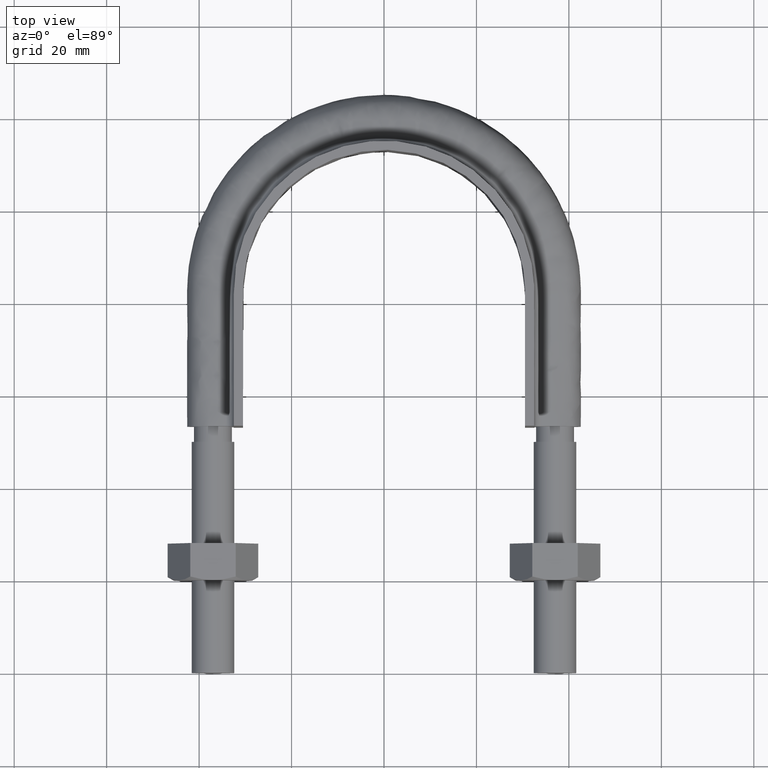
[diagram: clean part render]
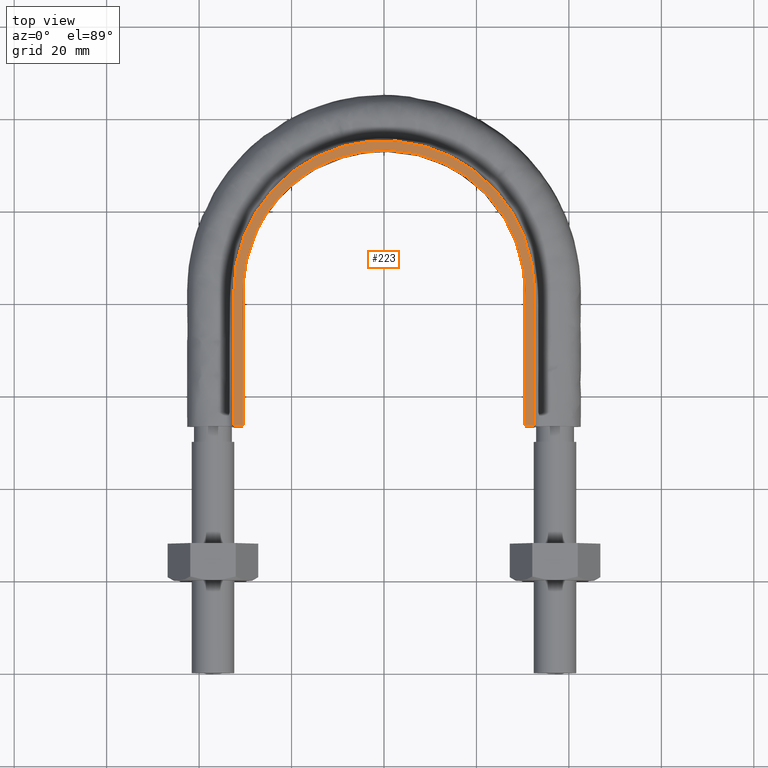
[diagram: same view with one face highlighted and labeled with its STEP entity id]
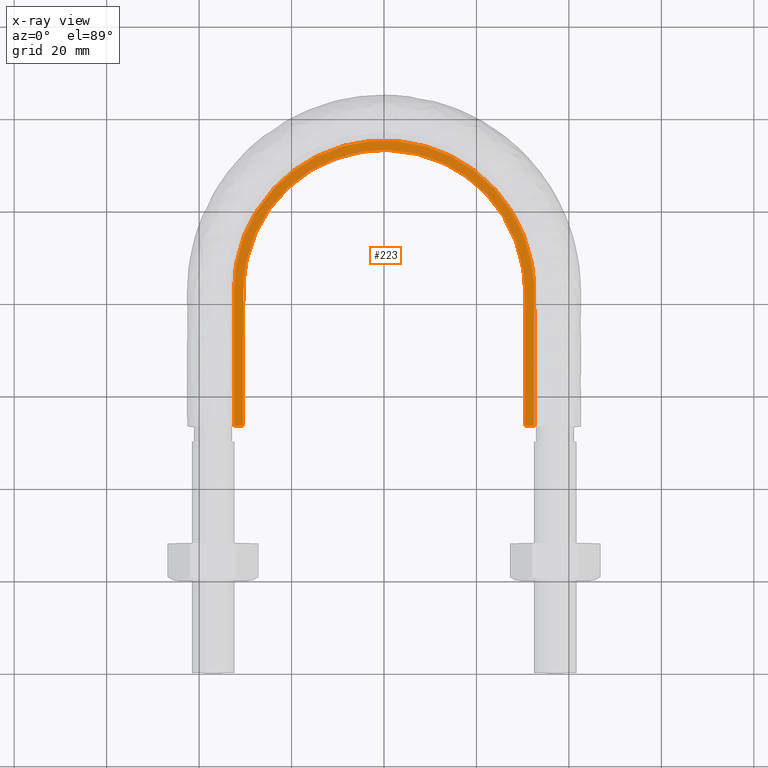
[diagram: x-ray of the same camera — body ghosted, the highlighted face saturated]
A machine part, top view. The second image highlights one B-rep face of the part: STEP entity #223.
The next image is the same camera in x-ray: the body ghosted, the highlighted face saturated — about 0% of this face is hidden behind the body in this view.
In plain terms, the highlighted planar face has unit normal (0, 0, 1).
Its self-contained STEP definition (entity closure, byte-faithful):
#223 = ADVANCED_FACE( '', ( #306 ), #307, .T. );
#306 = FACE_OUTER_BOUND( '', #1004, .T. );
#307 = PLANE( '', #1005 );
#1004 = EDGE_LOOP( '', ( #1492, #1493, #1494, #1495 ) );
#1005 = AXIS2_PLACEMENT_3D( '', #1496, #1497, #1498 );
#1492 = ORIENTED_EDGE( '', *, *, #2010, .T. );
#1493 = ORIENTED_EDGE( '', *, *, #2016, .T. );
#1494 = ORIENTED_EDGE( '', *, *, #2004, .T. );
#1495 = ORIENTED_EDGE( '', *, *, #2014, .F. );
#1496 = CARTESIAN_POINT( '', ( 45.0000000000000, 133.300000000000, 12.5000000000000 ) );
#1497 = DIRECTION( '', ( 0.000000000000000, 0.000000000000000, 1.00000000000000 ) );
#1498 = DIRECTION( '', ( 1.22460635382238E-016, 1.00000000000000, 0.000000000000000 ) );
#2004 = EDGE_CURVE( '', #2157, #2158, #2159, .T. );
#2010 = EDGE_CURVE( '', #2170, #2167, #2171, .T. );
#2014 = EDGE_CURVE( '', #2170, #2158, #2176, .T. );
#2016 = EDGE_CURVE( '', #2167, #2157, #2178, .T. );
#2157 = VERTEX_POINT( '', #2416 );
#2158 = VERTEX_POINT( '', #2417 );
#2159 = LINE( '', #2418, #2419 );
#2167 = VERTEX_POINT( '', #2468 );
#2170 = VERTEX_POINT( '', #2472 );
#2171 = LINE( '', #2473, #2474 );
#2176 = B_SPLINE_CURVE_WITH_KNOTS( '', 3, ( #2526, #2527, #2528, #2529, #2530, #2531, #2532, #2533, #2534, #2535, #2536, #2537, #2538, #2539, #2540, #2541, #2542 ), .UNSPECIFIED., .F., .F., ( 4, 3, 1, 1, 1, 1, 1, 1, 1, 3, 4 ), ( 0.117824773413900, 1.00000000000000, 1.50000000000000, 2.00000000000000, 3.00000000000000, 4.00000000000000, 5.00000000000000, 6.00000000000000, 6.50000000000000, 7.00000000000000, 7.88217522658610 ), .UNSPECIFIED. );
#2178 = B_SPLINE_CURVE_WITH_KNOTS( '', 3, ( #2560, #2561, #2562, #2563, #2564, #2565, #2566, #2567, #2568, #2569, #2570, #2571, #2572, #2573, #2574, #2575, #2576, #2577, #2578, #2579, #2580, #2581, #2582, #2583, #2584, #2585, #2586, #2587, #2588, #2589, #2590, #2591, #2592, #2593, #2594, #2595, #2596, #2597, #2598, #2599, #2600, #2601, #2602, #2603, #2604, #2605, #2606, #2607, #2608, #2609, #2610, #2611, #2612, #2613, #2614, #2615, #2616, #2617, #2618, #2619, #2620, #2621, #2622, #2623, #2624, #2625, #2626, #2627, #2628, #2629, #2630, #2631, #2632, #2633 ), .UNSPECIFIED., .F., .F., ( 4, 1, 2, 2, 2, 2, 2, 2, 2, 2, 2, 2, 2, 2, 2, 2, 2, 2, 2, 2, 2, 2, 2, 2, 2, 2, 2, 2, 2, 2, 2, 2, 2, 2, 2, 2, 1, 4 ), ( 1.38777878078145E-017, 0.0192554222640507, 0.0288831333960761, 0.0300865972875793, 0.0312900611790824, 0.0336969889620887, 0.0385108445281014, 0.0433247000941140, 0.0445281639856171, 0.0457316278771203, 0.0481385556601266, 0.0529524112261391, 0.0553593390091454, 0.0577662667921516, 0.0625801223581641, 0.0649870501411704, 0.0673939779241766, 0.0722078334901891, 0.0746147612731954, 0.0770216890562016, 0.0818355446222141, 0.0842424724052204, 0.0866494001882266, 0.0914632557542391, 0.0938701835372454, 0.0962771113202516, 0.101090966886264, 0.103497894669270, 0.105904822452277, 0.110718678018289, 0.115532533584302, 0.117939461367308, 0.120346389150314, 0.122753316933320, 0.123956780824824, 0.125160244716327, 0.134787955848351, 0.154043378112401 ), .UNSPECIFIED. );
#2416 = CARTESIAN_POINT( '', ( 30.5000000000000, 53.3000000000001, 12.5000000000000 ) );
#2417 = CARTESIAN_POINT( '', ( 32.5000000000000, 53.3000000000001, 12.5000000000000 ) );
#2418 = CARTESIAN_POINT( '', ( -45.0000000000000, 53.3000000000001, 12.5000000000000 ) );
#2419 = VECTOR( '', #3074, 1000.00000000000 );
#2468 = CARTESIAN_POINT( '', ( -30.5000000000000, 53.3000000000001, 12.5000000000000 ) );
#2472 = CARTESIAN_POINT( '', ( -32.5000000000000, 53.3000000000001, 12.5000000000000 ) );
#2473 = CARTESIAN_POINT( '', ( -45.0000000000000, 53.3000000000001, 12.5000000000000 ) );
#2474 = VECTOR( '', #3078, 1000.00000000000 );
#2526 = CARTESIAN_POINT( '', ( -32.5000000000000, 53.3000000000001, 12.5000000000000 ) );
#2527 = CARTESIAN_POINT( '', ( -32.5000000000000, 63.0333333333334, 12.5000000000000 ) );
#2528 = CARTESIAN_POINT( '', ( -32.5000000000000, 72.7666666666667, 12.5000000000000 ) );
#2529 = CARTESIAN_POINT( '', ( -32.5000000000000, 82.5000000000000, 12.5000000000000 ) );
#2530 = CARTESIAN_POINT( '', ( -32.5000000000000, 85.3255423698130, 12.5000000000000 ) );
#2531 = CARTESIAN_POINT( '', ( -31.7387347919768, 91.0086177593115, 12.5000000000000 ) );
#2532 = CARTESIAN_POINT( '', ( -27.3871545291852, 101.582731692400, 12.5000000000000 ) );
#2533 = CARTESIAN_POINT( '', ( -17.0093196223625, 111.962325971844, 12.5000000000000 ) );
#2534 = CARTESIAN_POINT( '', ( 2.98814820985346E-014, 116.518837014078, 12.5000000000000 ) );
#2535 = CARTESIAN_POINT( '', ( 17.0093196223626, 111.962325971844, 12.5000000000000 ) );
#2536 = CARTESIAN_POINT( '', ( 27.3871545291853, 101.582731692400, 12.5000000000000 ) );
#2537 = CARTESIAN_POINT( '', ( 31.7387347919769, 91.0086177593115, 12.5000000000000 ) );
#2538 = CARTESIAN_POINT( '', ( 32.5000000000000, 85.3255423698130, 12.5000000000000 ) );
#2539 = CARTESIAN_POINT( '', ( 32.5000000000000, 82.5000000000000, 12.5000000000000 ) );
#2540 = CARTESIAN_POINT( '', ( 32.5000000000000, 72.7666666666667, 12.5000000000000 ) );
#2541 = CARTESIAN_POINT( '', ( 32.5000000000000, 63.0333333333334, 12.5000000000000 ) );
#2542 = CARTESIAN_POINT( '', ( 32.5000000000000, 53.3000000000001, 12.5000000000000 ) );
#2560 = CARTESIAN_POINT( '', ( -30.5000000000000, 53.3000000000001, 12.5000000000000 ) );
#2561 = CARTESIAN_POINT( '', ( -30.5000000000000, 59.7187970838913, 12.5000000000000 ) );
#2562 = CARTESIAN_POINT( '', ( -30.5000000000000, 69.3469927097280, 12.5000000000000 ) );
#2563 = CARTESIAN_POINT( '', ( -30.5000000000000, 78.9751883355648, 12.5000000000000 ) );
#2564 = CARTESIAN_POINT( '', ( -30.5000000000000, 82.5857616952536, 12.5000000000000 ) );
#2565 = CARTESIAN_POINT( '', ( -30.4986844541323, 82.9869233149687, 12.5000000000000 ) );
#2566 = CARTESIAN_POINT( '', ( -30.4745981741132, 83.7890313082535, 12.5000000000000 ) );
#2567 = CARTESIAN_POINT( '', ( -30.4544492509141, 84.1900039847711, 12.5000000000000 ) );
#2568 = CARTESIAN_POINT( '', ( -30.3699321862256, 85.3926805324888, 12.5000000000000 ) );
#2569 = CARTESIAN_POINT( '', ( -30.2815513452004, 86.1941969152071, 12.5000000000000 ) );
#2570 = CARTESIAN_POINT( '', ( -29.9199873207873, 88.5974575716379, 12.5000000000000 ) );
#2571 = CARTESIAN_POINT( '', ( -29.5571198360746, 90.1597878617219, 12.5000000000000 ) );
#2572 = CARTESIAN_POINT( '', ( -28.5972722047830, 93.2078805901148, 12.5000000000000 ) );
#2573 = CARTESIAN_POINT( '', ( -28.0002144656636, 94.6936176513506, 12.5000000000000 ) );
#2574 = CARTESIAN_POINT( '', ( -27.0992764629768, 96.5002210087550, 12.5000000000000 ) );
#2575 = CARTESIAN_POINT( '', ( -26.9108830168221, 96.8597048381307, 12.5000000000000 ) );
#2576 = CARTESIAN_POINT( '', ( -26.5213882779157, 97.5675877861411, 12.5000000000000 ) );
#2577 = CARTESIAN_POINT( '', ( -26.3200606712639, 97.9164743968341, 12.5000000000000 ) );
#2578 = CARTESIAN_POINT( '', ( -25.6966622493176, 98.9482193844740, 12.5000000000000 ) );
#2579 = CARTESIAN_POINT( '', ( -25.2552822010554, 99.6162446284547, 12.5000000000000 ) );
#2580 = CARTESIAN_POINT( '', ( -23.8563980365694, 101.562902855285, 12.5000000000000 ) );
#2581 = CARTESIAN_POINT( '', ( -22.8247599514251, 102.784586967087, 12.5000000000000 ) );
#2582 = CARTESIAN_POINT( '', ( -21.1277356912024, 104.502217366142, 12.5000000000000 ) );
#2583 = CARTESIAN_POINT( '', ( -20.5344294178501, 105.057480363821, 12.5000000000000 ) );
#2584 = CARTESIAN_POINT( '', ( -19.3154400053685, 106.111482848478, 12.5000000000000 ) );
#2585 = CARTESIAN_POINT( '', ( -18.6885192790513, 106.611839840476, 12.5000000000000 ) );
#2586 = CARTESIAN_POINT( '', ( -16.7561230155804, 108.033962699371, 12.5000000000000 ) );
#2587 = CARTESIAN_POINT( '', ( -15.3990725127794, 108.876870841468, 12.5000000000000 ) );
#2588 = CARTESIAN_POINT( '', ( -13.2570671195093, 109.978502957119, 12.5000000000000 ) );
#2589 = CARTESIAN_POINT( '', ( -12.5228230069798, 110.319814017707, 12.5000000000000 ) );
#2590 = CARTESIAN_POINT( '', ( -11.0306240768060, 110.942412499716, 12.5000000000000 ) );
#2591 = CARTESIAN_POINT( '', ( -10.2767436568867, 111.222274993299, 12.5000000000000 ) );
#2592 = CARTESIAN_POINT( '', ( -7.99256638845168, 111.970812104532, 12.5000000000000 ) );
#2593 = CARTESIAN_POINT( '', ( -6.43991564048132, 112.349172113475, 12.5000000000000 ) );
#2594 = CARTESIAN_POINT( '', ( -4.06589188416629, 112.734709900453, 12.5000000000000 ) );
#2595 = CARTESIAN_POINT( '', ( -3.26699737472988, 112.832705696047, 12.5000000000000 ) );
#2596 = CARTESIAN_POINT( '', ( -1.65347310558420, 112.965123458687, 12.5000000000000 ) );
#2597 = CARTESIAN_POINT( '', ( -0.846703494355755, 112.998768451046, 12.5000000000000 ) );
#2598 = CARTESIAN_POINT( '', ( 1.55984817231915, 113.002363337310, 12.5000000000000 ) );
#2599 = CARTESIAN_POINT( '', ( 3.15187678310372, 112.876183128002, 12.5000000000000 ) );
#2600 = CARTESIAN_POINT( '', ( 5.52210746155242, 112.501305428157, 12.5000000000000 ) );
#2601 = CARTESIAN_POINT( '', ( 6.30919715953041, 112.345218975853, 12.5000000000000 ) );
#2602 = CARTESIAN_POINT( '', ( 7.87729381106987, 111.969662553274, 12.5000000000000 ) );
#2603 = CARTESIAN_POINT( '', ( 8.65917048563714, 111.749575242180, 12.5000000000000 ) );
#2604 = CARTESIAN_POINT( '', ( 10.9545464152787, 111.005259840029, 12.5000000000000 ) );
#2605 = CARTESIAN_POINT( '', ( 12.4320231471580, 110.394841390723, 12.5000000000000 ) );
#2606 = CARTESIAN_POINT( '', ( 14.5688395440172, 109.307386671407, 12.5000000000000 ) );
#2607 = CARTESIAN_POINT( '', ( 15.2677563263256, 108.915999398825, 12.5000000000000 ) );
#2608 = CARTESIAN_POINT( '', ( 16.6381409078519, 108.073822399900, 12.5000000000000 ) );
#2609 = CARTESIAN_POINT( '', ( 17.3125759005460, 107.620964775786, 12.5000000000000 ) );
#2610 = CARTESIAN_POINT( '', ( 19.2664798661707, 106.192854811404, 12.5000000000000 ) );
#2611 = CARTESIAN_POINT( '', ( 20.4798446876838, 105.148667712286, 12.5000000000000 ) );
#2612 = CARTESIAN_POINT( '', ( 22.1715309172385, 103.449889227024, 12.5000000000000 ) );
#2613 = CARTESIAN_POINT( '', ( 22.7138929749291, 102.861402400307, 12.5000000000000 ) );
#2614 = CARTESIAN_POINT( '', ( 23.7548102890672, 101.639210134757, 12.5000000000000 ) );
#2615 = CARTESIAN_POINT( '', ( 24.2544864579075, 101.003952520684, 12.5000000000000 ) );
#2616 = CARTESIAN_POINT( '', ( 25.6776288297832, 99.0375811703479, 12.5000000000000 ) );
#2617 = CARTESIAN_POINT( '', ( 26.5096219006963, 97.6683929281867, 12.5000000000000 ) );
#2618 = CARTESIAN_POINT( '', ( 27.9456565910457, 94.8162559376610, 12.5000000000000 ) );
#2619 = CARTESIAN_POINT( '', ( 28.5509590265555, 93.3339364069384, 12.5000000000000 ) );
#2620 = CARTESIAN_POINT( '', ( 29.2876344042200, 91.0249796848164, 12.5000000000000 ) );
#2621 = CARTESIAN_POINT( '', ( 29.5032356740682, 90.2439773078622, 12.5000000000000 ) );
#2622 = CARTESIAN_POINT( '', ( 29.8703294719088, 88.6797381224588, 12.5000000000000 ) );
#2623 = CARTESIAN_POINT( '', ( 30.0228181117525, 87.8935874420540, 12.5000000000000 ) );
#2624 = CARTESIAN_POINT( '', ( 30.2663038414340, 86.3133050211837, 12.5000000000000 ) );
#2625 = CARTESIAN_POINT( '', ( 30.3573018810972, 85.5191734039971, 12.5000000000000 ) );
#2626 = CARTESIAN_POINT( '', ( 30.4466313783281, 84.3218540452474, 12.5000000000000 ) );
#2627 = CARTESIAN_POINT( '', ( 30.4685308150341, 83.9217252192101, 12.5000000000000 ) );
#2628 = CARTESIAN_POINT( '', ( 30.4961990804467, 83.1193739566921, 12.5000000000000 ) );
#2629 = CARTESIAN_POINT( '', ( 30.5000000000000, 82.7168961029852, 12.5000000000000 ) );
#2630 = CARTESIAN_POINT( '', ( 30.5000000000001, 79.0901554875487, 12.5000000000000 ) );
#2631 = CARTESIAN_POINT( '', ( 30.5000000000000, 69.4188471797180, 12.5000000000000 ) );
#2632 = CARTESIAN_POINT( '', ( 30.5000000000000, 59.7475388718872, 12.5000000000000 ) );
#2633 = CARTESIAN_POINT( '', ( 30.5000000000000, 53.3000000000000, 12.5000000000000 ) );
#3074 = DIRECTION( '', ( 1.00000000000000, -1.22460635382238E-016, 0.000000000000000 ) );
#3078 = DIRECTION( '', ( 1.00000000000000, -1.22460635382238E-016, 0.000000000000000 ) );